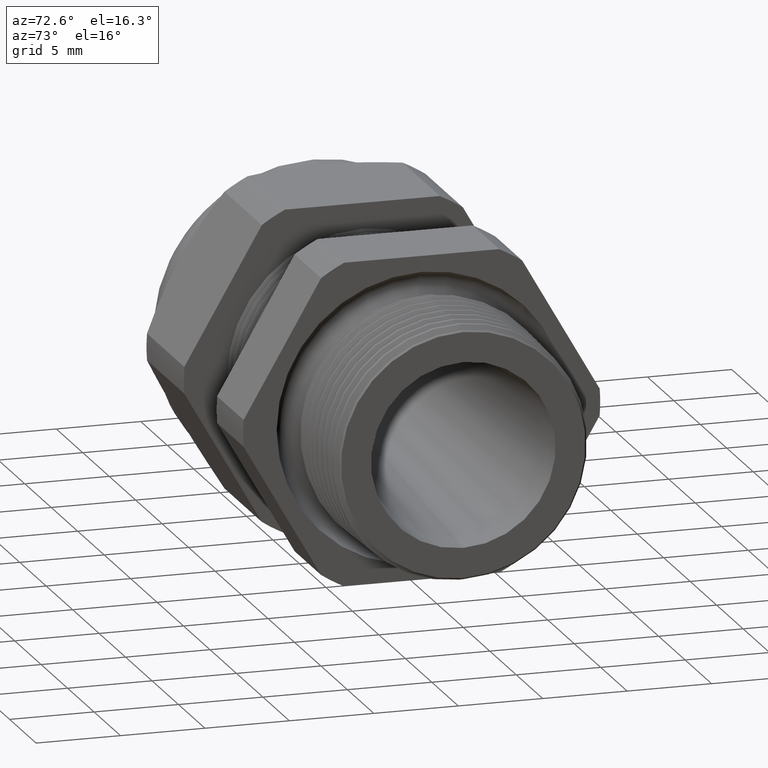
[diagram: clean part render]
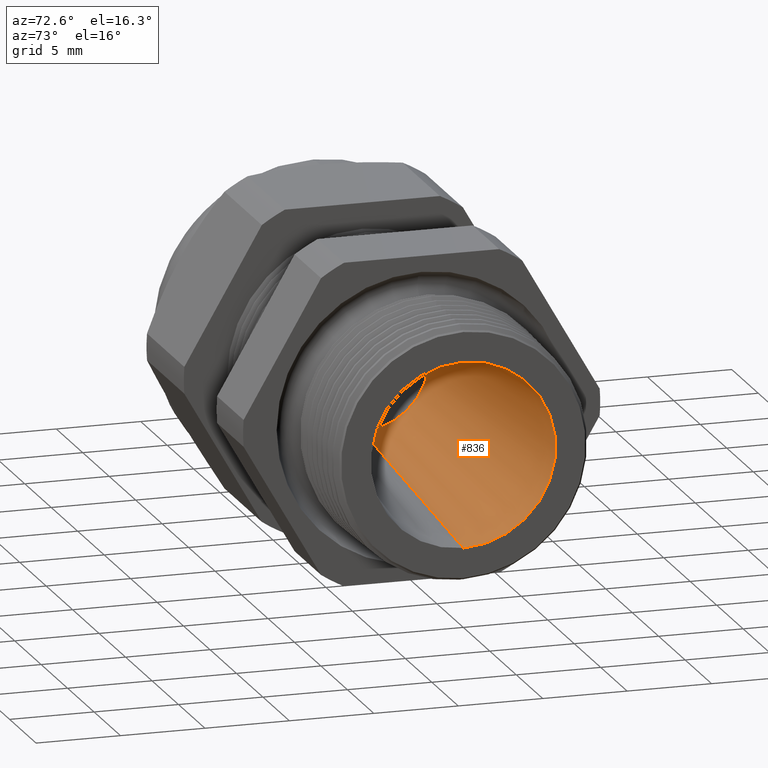
[diagram: same view with one face highlighted and labeled with its STEP entity id]
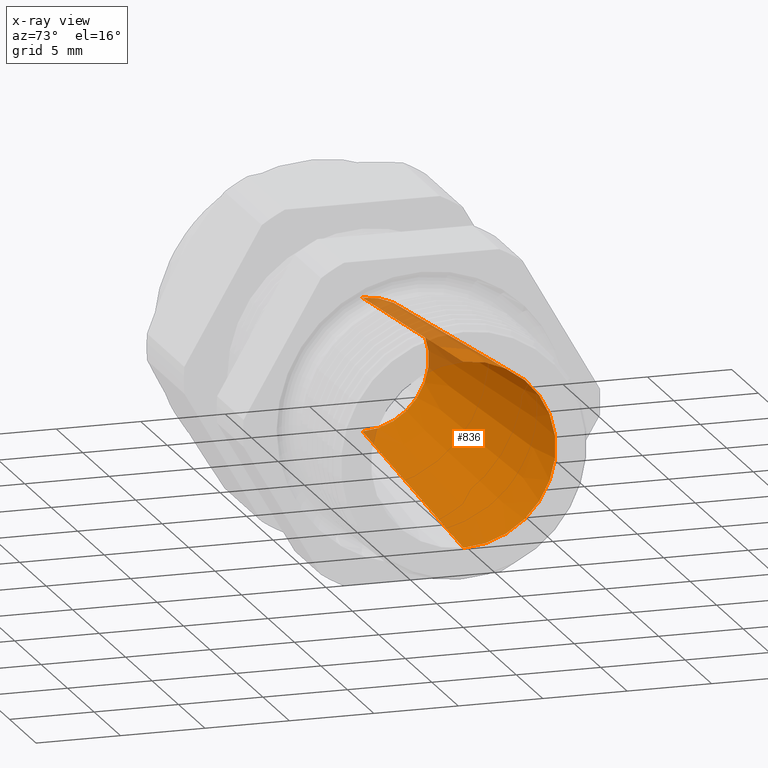
[diagram: x-ray of the same camera — body ghosted, the highlighted face saturated]
A machine part, auxiliary view. The second image highlights one B-rep face of the part: STEP entity #836.
The next image is the same camera in x-ray: the body ghosted, the highlighted face saturated — about 8% of this face is hidden behind the body in this view.
In plain terms, the highlighted conical surface has half-angle 4.594 deg.
Its self-contained STEP definition (entity closure, byte-faithful):
#236 = VERTEX_POINT ( 'NONE', #1900 ) ;
#238 = EDGE_CURVE ( 'NONE', #251, #236, #1899, .T. ) ;
#248 = VERTEX_POINT ( 'NONE', #1944 ) ;
#251 = VERTEX_POINT ( 'NONE', #1938 ) ;
#258 = EDGE_CURVE ( 'NONE', #248, #259, #1989, .T. ) ;
#259 = VERTEX_POINT ( 'NONE', #1985 ) ;
#836 = ADVANCED_FACE ( 'NONE', ( #4042 ), #4040, .F. ) ;
#837 = EDGE_LOOP ( 'NONE', ( #838, #839, #841, #842 ) ) ;
#838 = ORIENTED_EDGE ( 'NONE', *, *, #258, .F. ) ;
#839 = ORIENTED_EDGE ( 'NONE', *, *, #840, .F. ) ;
#840 = EDGE_CURVE ( 'NONE', #251, #248, #4027, .T. ) ;
#841 = ORIENTED_EDGE ( 'NONE', *, *, #238, .T. ) ;
#842 = ORIENTED_EDGE ( 'NONE', *, *, #859, .T. ) ;
#859 = EDGE_CURVE ( 'NONE', #236, #259, #4079, .T. ) ;
#1898 = CARTESIAN_POINT ( 'NONE',  ( -0.7508661417322833900, 0.0000000000000000000, -0.1550000000000000000 ) ) ;
#1899 = LINE ( 'NONE', #1898, #1960 ) ;
#1900 = CARTESIAN_POINT ( 'NONE',  ( 0.0000000000000000000, 0.0000000000000000000, -0.2153378781036457400 ) ) ;
#1938 = CARTESIAN_POINT ( 'NONE',  ( -0.7508661417322833900, 0.0000000000000000000, -0.1550000000000000000 ) ) ;
#1944 = CARTESIAN_POINT ( 'NONE',  ( -0.7508661417322833900, 2.267665485113262000E-017, 0.1550000000000000000 ) ) ;
#1959 = DIRECTION ( 'NONE',  ( 0.9967868727108976100, 0.0000000000000000000, -0.08009950306480641300 ) ) ;
#1960 = VECTOR ( 'NONE', #1959, 39.37007874015748900 ) ;
#1985 = CARTESIAN_POINT ( 'NONE',  ( 0.0000000000000000000, 2.637128431548127100E-017, 0.2153378781036457400 ) ) ;
#1986 = DIRECTION ( 'NONE',  ( 0.9967868727108976100, 9.809360004160878300E-018, 0.08009950306480641300 ) ) ;
#1987 = VECTOR ( 'NONE', #1986, 39.37007874015748900 ) ;
#1988 = CARTESIAN_POINT ( 'NONE',  ( -0.7508661417322833900, 1.898202538678397300E-017, 0.1550000000000000000 ) ) ;
#1989 = LINE ( 'NONE', #1988, #1987 ) ;
#4024 = DIRECTION ( 'NONE',  ( 0.0000000000000000000, 0.0000000000000000000, -1.000000000000000000 ) ) ;
#4025 = DIRECTION ( 'NONE',  ( 1.000000000000000000, 0.0000000000000000000, 0.0000000000000000000 ) ) ;
#4026 = AXIS2_PLACEMENT_3D ( 'NONE', #4039, #4025, #4024 ) ;
#4027 = CIRCLE ( 'NONE', #4026, 0.1550000000000000000 ) ;
#4032 = DIRECTION ( 'NONE',  ( 0.0000000000000000000, 0.0000000000000000000, -1.000000000000000000 ) ) ;
#4033 = DIRECTION ( 'NONE',  ( 1.000000000000000000, 0.0000000000000000000, 0.0000000000000000000 ) ) ;
#4035 = CARTESIAN_POINT ( 'NONE',  ( -0.7508661417322833900, 0.0000000000000000000, 0.0000000000000000000 ) ) ;
#4037 = AXIS2_PLACEMENT_3D ( 'NONE', #4035, #4033, #4032 ) ;
#4039 = CARTESIAN_POINT ( 'NONE',  ( -0.7508661417322833900, 0.0000000000000000000, 0.0000000000000000000 ) ) ;
#4040 = CONICAL_SURFACE ( 'NONE', #4037, 0.1550000000000000000, 0.08018540344487304300 ) ;
#4042 = FACE_OUTER_BOUND ( 'NONE', #837, .T. ) ;
#4074 = DIRECTION ( 'NONE',  ( 0.0000000000000000000, 0.0000000000000000000, -1.000000000000000000 ) ) ;
#4076 = DIRECTION ( 'NONE',  ( 1.000000000000000000, 0.0000000000000000000, 0.0000000000000000000 ) ) ;
#4077 = CARTESIAN_POINT ( 'NONE',  ( 0.0000000000000000000, 0.0000000000000000000, 0.0000000000000000000 ) ) ;
#4078 = AXIS2_PLACEMENT_3D ( 'NONE', #4077, #4076, #4074 ) ;
#4079 = CIRCLE ( 'NONE', #4078, 0.2153378781036457400 ) ;